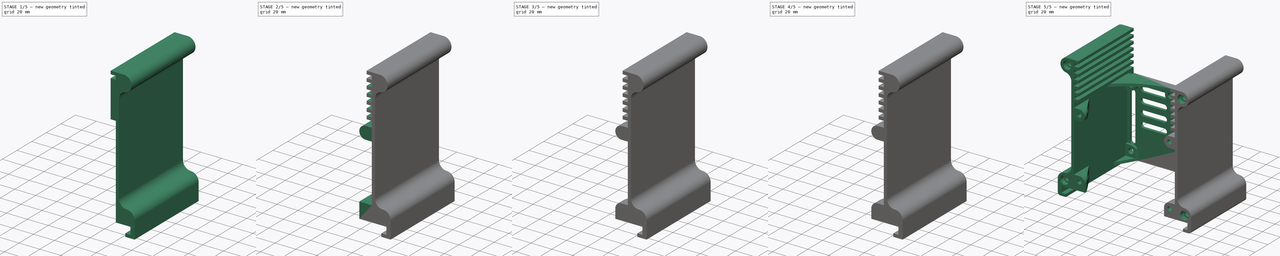
[diagram: build sequence overview — one tinted view per stage of 5, left to right]
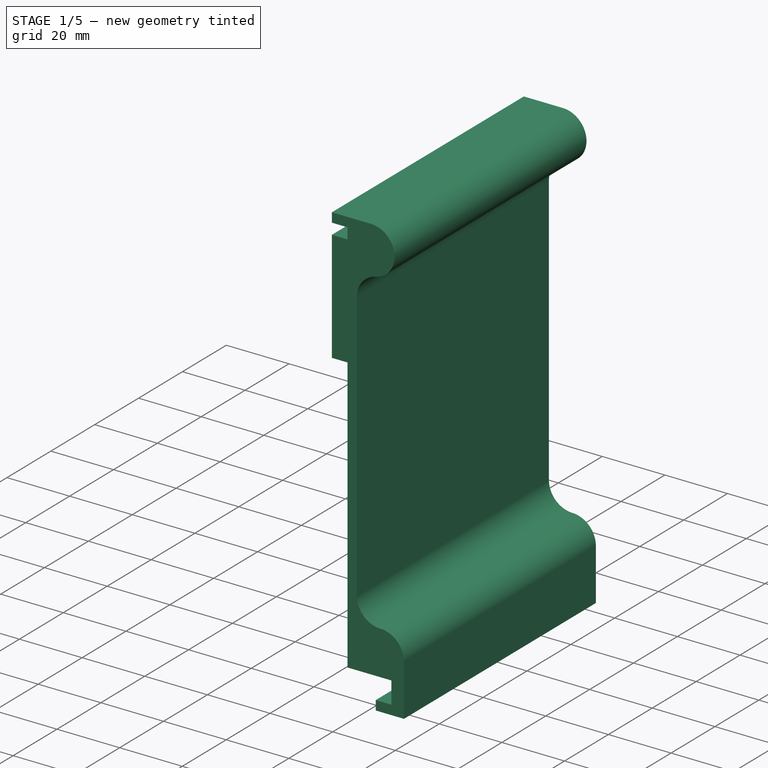
[diagram: stage 1 of 5 — iso view after this stage's code; geometry added in this stage tinted green]
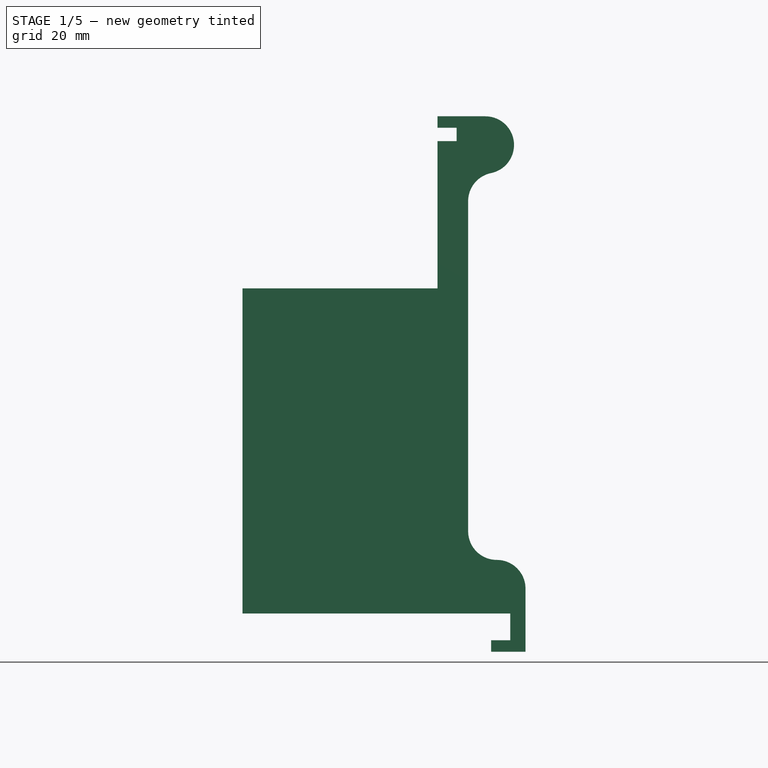
[diagram: stage 1 of 5 — front view after this stage's code; geometry added in this stage tinted green]
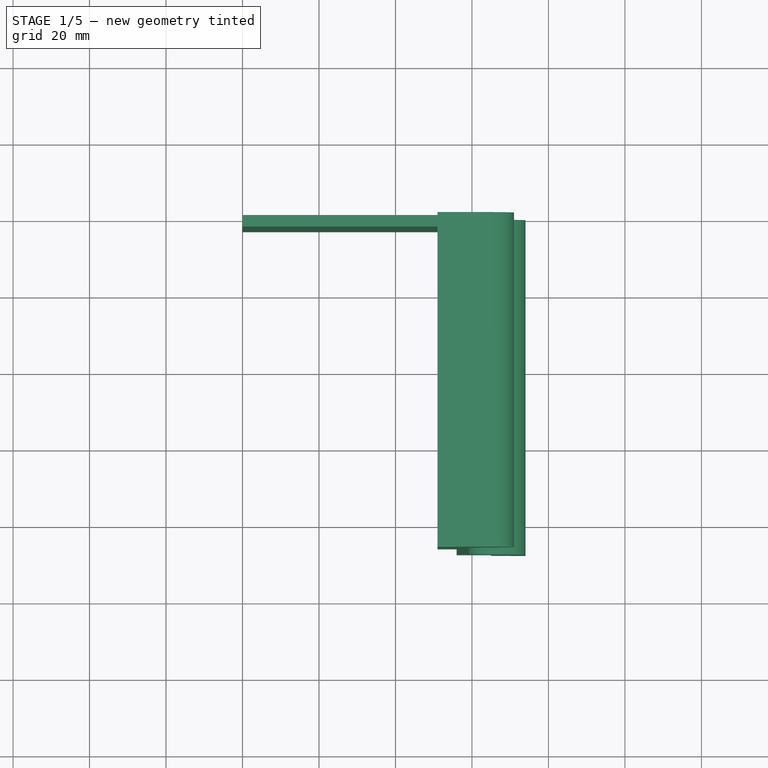
[diagram: stage 1 of 5 — top view after this stage's code; geometry added in this stage tinted green]
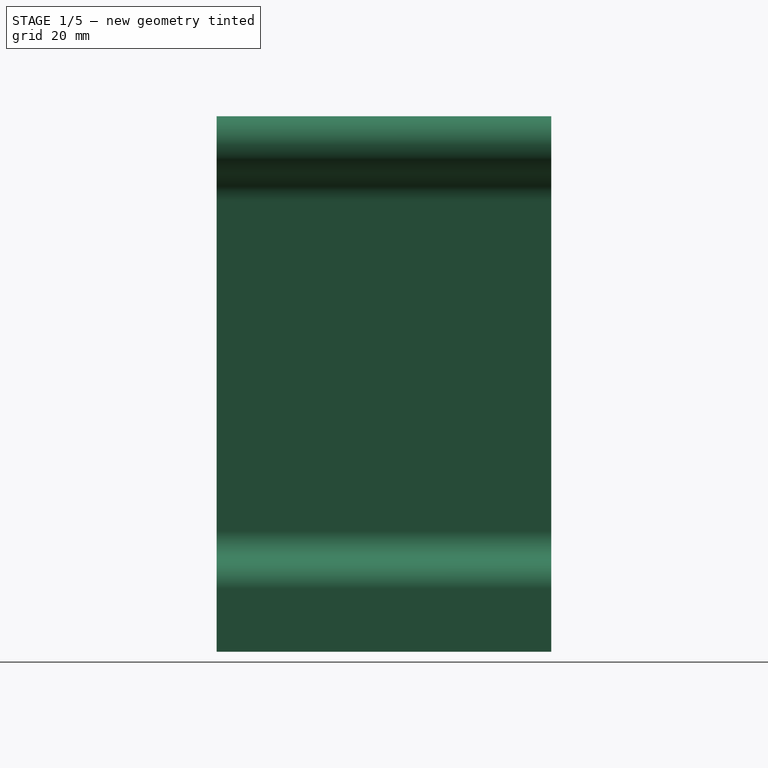
[diagram: stage 1 of 5 — right view after this stage's code; geometry added in this stage tinted green]
FCSTD DOCUMENT  (FreeCAD 1.0R39319 (Git))
Label: Stack_Module
License: All rights reserved
LicenseURL: https://en.wikipedia.org/wiki/All_rights_reserved
objects: Sketcher::SketchObject×20, PartDesign::Pocket×15, PartDesign::CoordinateSystem×7, PartDesign::Pad×6, PartDesign::Fillet×5, PartDesign::LinearPattern×2, PartDesign::Mirrored×1, PartDesign::Body×1, App::Part×1
note: 132 computed .brp shape members not serialized (recipe doc carries the construction recipe); baked Part::Feature solids carry a one-line shape summary decoded from their .brp

FEATURE [Sketcher::SketchObject] Sketch
  ArcFitTolerance = 1e-06
  AttachmentSupport = -> [XZ_Plane001]
  FullyConstrained = true
  MakeInternals = false
  MapMode = 5
  Placement = pos=(0,0,0) rot=(1,0,0;1.5708rad)
  sketch-geometry (9):
    g0: LineSegment StartX=0 StartY=-70 StartZ=0 EndX=74 EndY=-70 EndZ=0
    g1: LineSegment StartX=74 StartY=-70 StartZ=0 EndX=74 EndY=-53.5 EndZ=0
    g2: ArcOfCircle CenterX=66.5 CenterY=-53.5 CenterZ=0 NormalX=0 NormalY=0 NormalZ=1 AngleXU=0 Radius=7.5 StartAngle=0 EndAngle=1.5708
    g3: ArcOfCircle CenterX=66.5 CenterY=-38.5 CenterZ=0 NormalX=0 NormalY=0 NormalZ=1 AngleXU=0 Radius=7.5 StartAngle=3.14159 EndAngle=4.71239
    g4: LineSegment StartX=59 StartY=-38.5 StartZ=0 EndX=59 EndY=47.8031 EndZ=0
    g5: ArcOfCircle CenterX=66.5 CenterY=47.8031 CenterZ=0 NormalX=0 NormalY=0 NormalZ=1 AngleXU=0 Radius=7.5 StartAngle=1.77215 EndAngle=3.14159
    g6: ArcOfCircle CenterX=63.5 CenterY=62.5 CenterZ=0 NormalX=0 NormalY=0 NormalZ=1 AngleXU=0 Radius=7.5 StartAngle=4.91375 EndAngle=7.85398
    g7: LineSegment StartX=63.5 StartY=70 StartZ=0 EndX=0 EndY=70 EndZ=0
    g8: LineSegment StartX=0 StartY=70 StartZ=0 EndX=0 EndY=-70 EndZ=0
  constraints (26):
    c: PointOnObject(g0,g-2)
    c: Horizontal(g0)
    c: Coincident(g0,g1)
    c: Vertical(g1)
    c: Tangent(g1,g2) = -1.5708
    c: Tangent(g2,g3) = 1.5708
    c: Tangent(g3,g4) = 1.5708
    c: Tangent(g4,g5) = 1.5708
    c: Tangent(g5,g6) = 1.5708
    c: Tangent(g6,g7) = -1.5708
    c: Coincident(g7,g8)
    c: Coincident(g8,g0)
    c: Vertical(g8)
    c: Horizontal(g7)
    c: Vertical(g4)
    c: DistanceX(g0,g0) = 74
    c: Distance(g7,g0) = 140
    c: Distance(g2,g0) = 16.5
    c: Radius(g2) = 7.5
    c: Distance(g8,g4) = 59
    c: Radius(g6) = 7.5
    c: Distance(g6,g8) = 63.5
    c: Distance(g2,g8) = 66.5
    c: Distance(g-1,g0) = 70
    c: Radius(g3) = 7.5
    c: Radius(g5) = 7.5
FEATURE [PartDesign::Pad] Pad
  Direction = (0,-1,2e-16)
  Length = 87.5
  Length2 = 10
  Placement = pos=(0,0,0) rot=(1,0,0;1.5708rad)
  Profile = -> Sketch
  ReferenceAxis = -> Sketch [N_Axis]
  Refine = true
  Suppressed = false
  Type = 0
FEATURE [Sketcher::SketchObject] Sketch001
  ArcFitTolerance = 1e-06
  AttachmentSupport = -> [Pad]
  ExternalGeometry = -> [Pad]
  FullyConstrained = true
  MakeInternals = false
  MapMode = 5
  Placement = pos=(0,-87.5,0) rot=(1,0,0;1.5708rad)
  sketch-geometry (6):
    g0: LineSegment StartX=0 StartY=-60 StartZ=0 EndX=0 EndY=-70 EndZ=0
    g1: LineSegment StartX=70 StartY=-67 StartZ=0 EndX=70 EndY=-60 EndZ=0
    g2: LineSegment StartX=70 StartY=-60 StartZ=0 EndX=0 EndY=-60 EndZ=0
    g3: LineSegment StartX=70 StartY=-67 StartZ=0 EndX=65 EndY=-67 EndZ=0
    g4: LineSegment StartX=65 StartY=-67 StartZ=0 EndX=65 EndY=-70 EndZ=0
    g5: LineSegment StartX=65 StartY=-70 StartZ=0 EndX=0 EndY=-70 EndZ=0
  constraints (17):
    c: Coincident(g1,g2)
    c: Coincident(g2,g0)
    c: Vertical(g0)
    c: Vertical(g1)
    c: Horizontal(g2)
    c: Distance(g-2,g1) = 70
    c: Coincident(g1,g3)
    c: Horizontal(g3)
    c: Coincident(g3,g4)
    c: PointOnObject(g4,g-3)
    c: Coincident(g4,g5)
    c: Coincident(g5,g-3)
    c: Coincident(g0,g5)
    c: Vertical(g4)
    c: Distance(g3,g2) = 7
    c: Distance(g5,g3) = 3
    c: Distance(g-2,g4) = 65
FEATURE [PartDesign::Pocket] Pocket
  BaseFeature = -> Pad
  Direction = (0,1,-2e-16)
  Length = 5
  Length2 = 5
  Placement = pos=(0,0,0) rot=(1,0,0;1.5708rad)
  Profile = -> Sketch001
  ReferenceAxis = -> Sketch001 [N_Axis]
  Refine = true
  Suppressed = false
  Type = 1
FEATURE [Sketcher::SketchObject] Sketch002
  ArcFitTolerance = 1e-06
  AttachmentSupport = -> [Pocket]
  ExternalGeometry = -> [Pocket]
  FullyConstrained = true
  MakeInternals = false
  MapMode = 5
  Placement = pos=(0,-87.5,0) rot=(1,0,0;1.5708rad)
  sketch-geometry (4):
    g0: LineSegment StartX=0 StartY=28 StartZ=0 EndX=0 EndY=-60 EndZ=0
    g1: LineSegment StartX=0 StartY=-60 StartZ=0 EndX=56 EndY=-60 EndZ=0
    g2: LineSegment StartX=56 StartY=-60 StartZ=0 EndX=56 EndY=28 EndZ=0
    g3: LineSegment StartX=56 StartY=28 StartZ=0 EndX=0 EndY=28 EndZ=0
  constraints (12):
    c: Coincident(g0,g1)
    c: Coincident(g1,g2)
    c: Coincident(g2,g3)
    c: Coincident(g3,g0)
    c: Vertical(g0)
    c: Vertical(g2)
    c: Horizontal(g1)
    c: Horizontal(g3)
    c: PointOnObject(g0,g-2)
    c: PointOnObject(g1,g-3)
    c: Distance(g-4,g2) = 3
    c: Distance(g3,g1) = 88
FEATURE [PartDesign::Pocket] Pocket001
  BaseFeature = -> Pocket
  Direction = (0,1,-2e-16)
  Length = 0
  Length2 = 5
  Offset = -3
  Placement = pos=(0,0,0) rot=(1,0,0;1.5708rad)
  Profile = -> Sketch002
  ReferenceAxis = -> Sketch002 [N_Axis]
  Refine = true
  Suppressed = false
  Type = 3
  UpToFace = -> Pocket [Face2]
FEATURE [Sketcher::SketchObject] Sketch003
  ArcFitTolerance = 1e-06
  AttachmentSupport = -> [Pocket001]
  ExternalGeometry = -> [Pocket001]
  FullyConstrained = true
  MakeInternals = false
  MapMode = 5
  Placement = pos=(0,-87.5,0) rot=(1,0,0;1.5708rad)
  sketch-geometry (4):
    g0: LineSegment StartX=0 StartY=70 StartZ=0 EndX=0 EndY=25 EndZ=0
    g1: LineSegment StartX=0 StartY=25 StartZ=0 EndX=51 EndY=25 EndZ=0
    g2: LineSegment StartX=51 StartY=25 StartZ=0 EndX=51 EndY=70 EndZ=0
    g3: LineSegment StartX=51 StartY=70 StartZ=0 EndX=0 EndY=70 EndZ=0
  constraints (11):
    c: Coincident(g0,g1)
    c: Coincident(g1,g2)
    c: Coincident(g2,g3)
    c: Coincident(g3,g0)
    c: Vertical(g0)
    c: Vertical(g2)
    c: Horizontal(g1)
    c: Horizontal(g3)
    c: Coincident(g0,g-4)
    c: Distance(g2,g-3) = 5
    c: Distance(g1,g3) = 45
FEATURE [PartDesign::Pocket] Pocket002
  BaseFeature = -> Pocket001
  Direction = (0,1,-2e-16)
  Length = 5
  Length2 = 5
  Placement = pos=(0,0,0) rot=(1,0,0;1.5708rad)
  Profile = -> Sketch003
  ReferenceAxis = -> Sketch003 [N_Axis]
  Refine = true
  Suppressed = false
  Type = 1
FEATURE [PartDesign::Pocket] Pocket003
  BaseFeature = -> Pocket002
  Direction = (0,1,-2e-16)
  Length = 5
  Length2 = 5
  Placement = pos=(0,0,0) rot=(1,0,0;1.5708rad)
  Profile = -> Sketch003
  ReferenceAxis = -> Sketch003 [N_Axis]
  Refine = true
  Suppressed = false
  Type = 1
FEATURE [Sketcher::SketchObject] Sketch004
  ArcFitTolerance = 1e-06
  AttachmentSupport = -> [Pocket003]
  ExternalGeometry = -> [Pocket003]
  FullyConstrained = true
  MakeInternals = false
  MapMode = 5
  Placement = pos=(0,-87.5,0) rot=(1,0,0;1.5708rad)
  sketch-geometry (4):
    g0: LineSegment StartX=51 StartY=67 StartZ=0 EndX=51 EndY=63.5 EndZ=0
    g1: LineSegment StartX=51 StartY=63.5 StartZ=0 EndX=56 EndY=63.5 EndZ=0
    g2: LineSegment StartX=56 StartY=63.5 StartZ=0 EndX=56 EndY=67 EndZ=0
    g3: LineSegment StartX=56 StartY=67 StartZ=0 EndX=51 EndY=67 EndZ=0
  constraints (12):
    c: Coincident(g0,g1)
    c: Coincident(g1,g2)
    c: Coincident(g2,g3)
    c: Coincident(g3,g0)
    c: Vertical(g0)
    c: Vertical(g2)
    c: Horizontal(g1)
    c: Horizontal(g3)
    c: PointOnObject(g0,g-4)
    c: Distance(g-3,g3) = 3
    c: Distance(g3,g1) = 3.5
    c: PointOnObject(g1,g-5)
FEATURE [PartDesign::Pocket] Pocket004
  BaseFeature = -> Pocket003
  Direction = (0,1,-2e-16)
  Length = 5
  Length2 = 5
  Placement = pos=(0,0,0) rot=(1,0,0;1.5708rad)
  Profile = -> Sketch004
  ReferenceAxis = -> Sketch004 [N_Axis]
  Refine = true
  Suppressed = false
  Type = 1
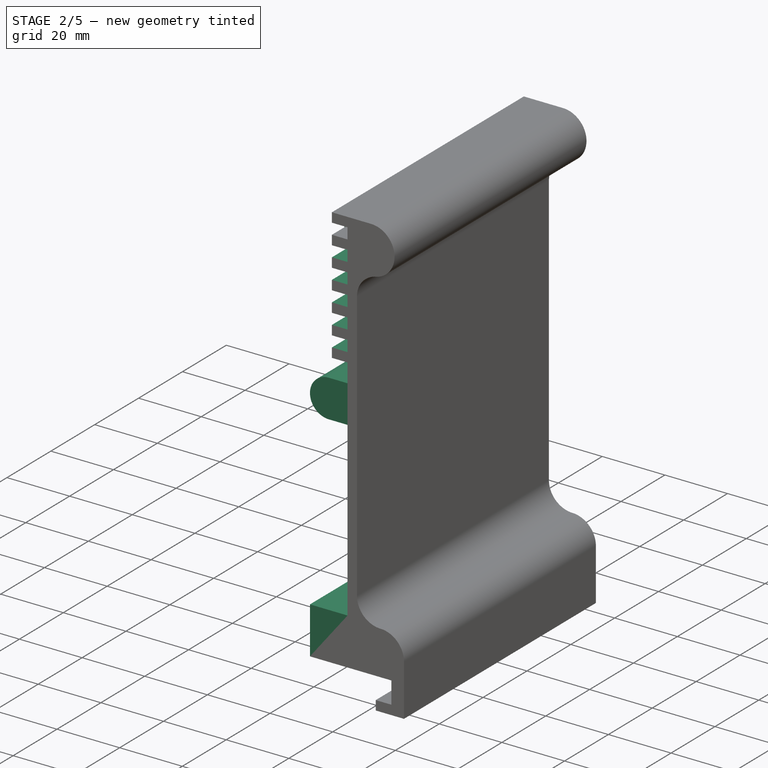
[diagram: stage 2 of 5 — iso view after this stage's code; geometry added in this stage tinted green]
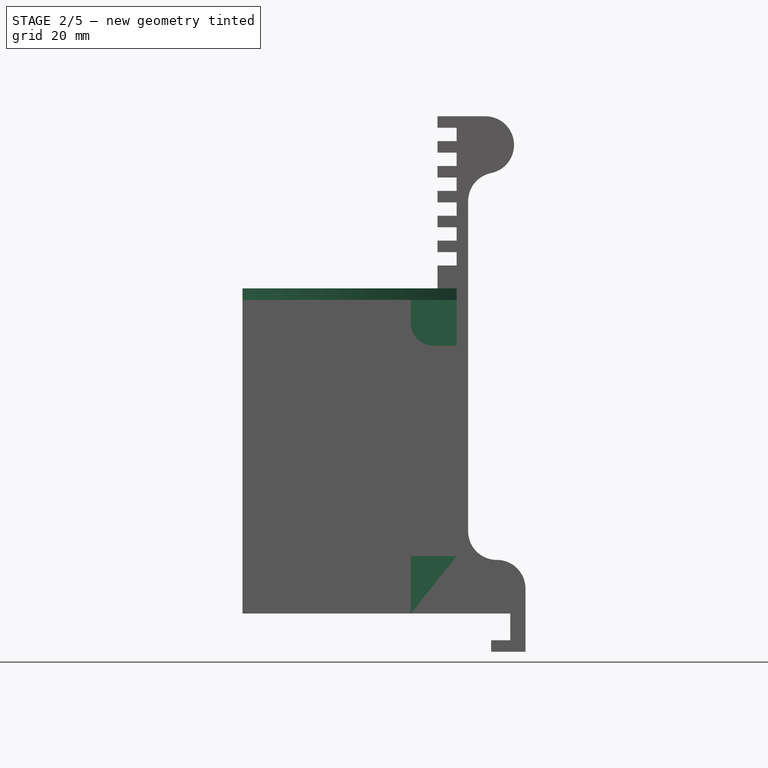
[diagram: stage 2 of 5 — front view after this stage's code; geometry added in this stage tinted green]
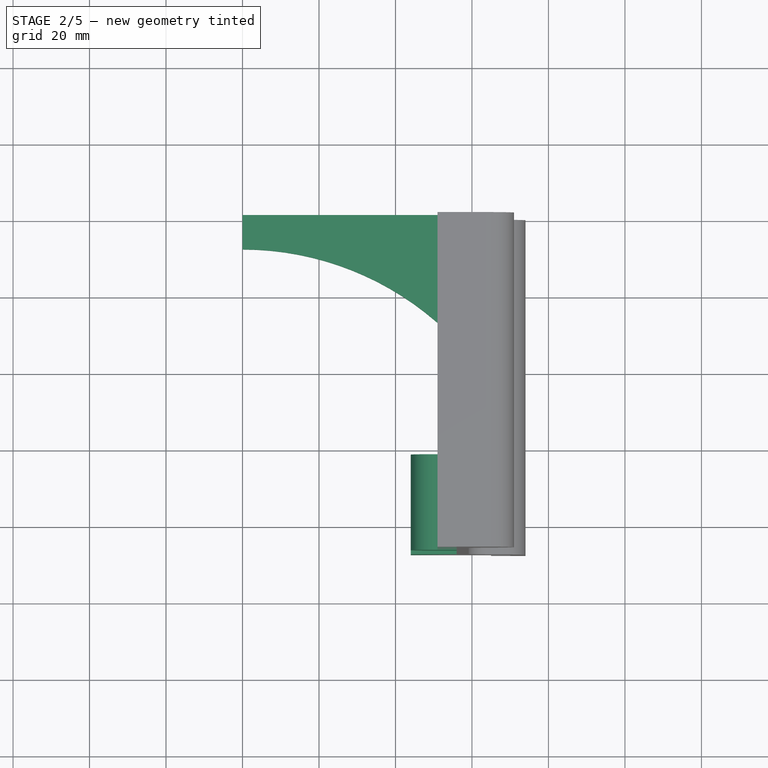
[diagram: stage 2 of 5 — top view after this stage's code; geometry added in this stage tinted green]
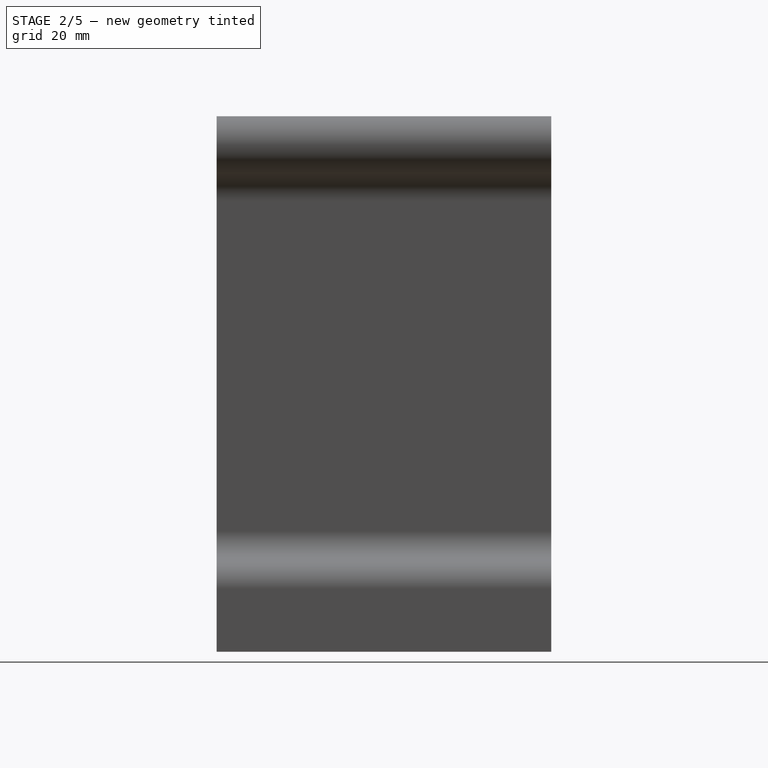
[diagram: stage 2 of 5 — right view after this stage's code; geometry added in this stage tinted green]
FEATURE [PartDesign::LinearPattern] LinearPattern
  BaseFeature = -> Pocket004
  Direction = -> Z_Axis001
  Length = 32.5
  Mode = 1
  Occurrences = 6
  Offset = 6.5
  Originals = -> [Pocket004]
  Placement = pos=(0,0,0) rot=(1,0,0;1.5708rad)
  Refine = true
  Reversed = true
  Suppressed = false
  TransformMode = 0
FEATURE [Sketcher::SketchObject] Sketch005
  ArcFitTolerance = 1e-06
  AttachmentSupport = -> [LinearPattern]
  ExternalGeometry = -> [LinearPattern]
  FullyConstrained = true
  MakeInternals = false
  MapMode = 5
  Placement = pos=(0,1.1e-14,25) rot=(0,0,1;3.14159rad)
  sketch-geometry (4):
    g0: LineSegment StartX=0 StartY=3 StartZ=0 EndX=-56 EndY=3 EndZ=0
    g1: LineSegment StartX=-56 StartY=3 StartZ=0 EndX=-56 EndY=33 EndZ=0
    g2: LineSegment StartX=0 StartY=3 StartZ=0 EndX=-1.42e-14 EndY=9 EndZ=0
    g3: ArcOfCircle CenterX=0 CenterY=86.3333 CenterZ=0 NormalX=0 NormalY=0 NormalZ=1 AngleXU=0 Radius=77.3333 StartAngle=3.90261 EndAngle=4.71239
  constraints (13):
    c: PointOnObject(g0,g-2)
    c: Horizontal(g0)
    c: Coincident(g0,g1)
    c: Vertical(g1)
    c: Coincident(g2,g0)
    c: PointOnObject(g2,g-2)
    c: Coincident(g3,g2)
    c: Coincident(g3,g1)
    c: PointOnObject(g3,g-2)
    c: DistanceY(g2,g2) = 6
    c: DistanceY(g1,g1) = 30
    c: PointOnObject(g0,g-3)
    c: PointOnObject(g1,g-4)
FEATURE [PartDesign::Pad] Pad001
  BaseFeature = -> LinearPattern
  Direction = (0,0,1)
  Length = 3
  Length2 = 10
  Placement = pos=(0,0,0) rot=(1,0,0;1.5708rad)
  Profile = -> Sketch005
  ReferenceAxis = -> Sketch005 [N_Axis]
  Refine = true
  Reversed = true
  Suppressed = false
  Type = 0
FEATURE [Sketcher::SketchObject] Sketch006
  ArcFitTolerance = 1e-06
  AttachmentSupport = -> [Pad001]
  ExternalGeometry = -> [Pad001]
  FullyConstrained = true
  MakeInternals = false
  MapMode = 5
  Placement = pos=(0,-3,7e-16) rot=(1,0,0;1.5708rad)
  sketch-geometry (8):
    g0: LineSegment StartX=56 StartY=22 StartZ=0 EndX=44 EndY=22 EndZ=0
    g1: LineSegment StartX=44 StartY=22 StartZ=0 EndX=44 EndY=10 EndZ=0
    g2: LineSegment StartX=44 StartY=10 StartZ=0 EndX=56 EndY=10 EndZ=0
    g3: LineSegment StartX=56 StartY=10 StartZ=0 EndX=56 EndY=22 EndZ=0
    g4: LineSegment StartX=56 StartY=-45 StartZ=0 EndX=44 EndY=-45 EndZ=0
    g5: LineSegment StartX=44 StartY=-45 StartZ=0 EndX=44 EndY=-57 EndZ=0
    g6: LineSegment StartX=44 StartY=-57 StartZ=0 EndX=56 EndY=-57 EndZ=0
    g7: LineSegment StartX=56 StartY=-57 StartZ=0 EndX=56 EndY=-45 EndZ=0
  constraints (23):
    c: Coincident(g0,g1)
    c: Coincident(g1,g2)
    c: Coincident(g2,g3)
    c: Coincident(g3,g0)
    c: Horizontal(g0)
    c: Horizontal(g2)
    c: Vertical(g1)
    c: Vertical(g3)
    c: Coincident(g4,g5)
    c: Coincident(g5,g6)
    c: Coincident(g6,g7)
    c: Coincident(g7,g4)
    c: Horizontal(g4)
    c: Horizontal(g6)
    c: Vertical(g5)
    c: Vertical(g7)
    c: DistanceX(g0,g0) = 12
    c: Distance(g2,g0) = 12
    c: Distance(g6,g4) = 12
    c: Distance(g7,g5) = 12
    c: Coincident(g0,g-5)
    c: PointOnObject(g4,g-3)
    c: Distance(g-4,g6) = 3
FEATURE [PartDesign::Pad] Pad002
  BaseFeature = -> Pad001
  Direction = (0,-1,2e-16)
  Length = 3
  Length2 = 10
  Placement = pos=(0,0,0) rot=(1,0,0;1.5708rad)
  Profile = -> Sketch006
  ReferenceAxis = -> Sketch006 [N_Axis]
  Refine = true
  Suppressed = false
  Type = 0
FEATURE [PartDesign::Fillet] Fillet
  Base = -> Pad002 [Edge152,Edge151]
  BaseFeature = -> Pad002
  Placement = pos=(0,0,0) rot=(1,0,0;1.5708rad)
  Radius = 6
  Refine = true
  SupportTransform = false
  Suppressed = false
  UseAllEdges = false
FEATURE [Sketcher::SketchObject] Sketch007
  ArcFitTolerance = 1e-06
  AttachmentSupport = -> [Fillet]
  ExternalGeometry = -> [Fillet]
  FullyConstrained = true
  MakeInternals = false
  MapMode = 5
  Placement = pos=(0,-87.5,0) rot=(1,0,0;1.5708rad)
  sketch-geometry (8):
    g0: LineSegment StartX=56 StartY=22 StartZ=0 EndX=56 EndY=10 EndZ=0
    g1: LineSegment StartX=56 StartY=10 StartZ=0 EndX=50 EndY=10 EndZ=0
    g2: ArcOfCircle CenterX=50 CenterY=16 CenterZ=0 NormalX=0 NormalY=0 NormalZ=1 AngleXU=0 Radius=6 StartAngle=1.5708 EndAngle=4.71239
    g3: LineSegment StartX=50 StartY=22 StartZ=0 EndX=56 EndY=22 EndZ=0
    g4: LineSegment StartX=56 StartY=-57 StartZ=0 EndX=56 EndY=-45 EndZ=0
    g5: LineSegment StartX=56 StartY=-45 StartZ=0 EndX=44 EndY=-45 EndZ=0
    g6: LineSegment StartX=44 StartY=-45 StartZ=0 EndX=44 EndY=-57 EndZ=0
    g7: LineSegment StartX=44 StartY=-57 StartZ=0 EndX=56 EndY=-57 EndZ=0
  constraints (17):
    c: Coincident(g0,g1)
    c: Horizontal(g1)
    c: Tangent(g1,g2) = 1.5708
    c: Tangent(g2,g3) = 1.5708
    c: Coincident(g3,g0)
    c: Coincident(g0,g-3)
    c: Coincident(g0,g-5)
    c: Coincident(g-6,g2)
    c: Coincident(g4,g5)
    c: Coincident(g5,g6)
    c: Coincident(g6,g7)
    c: Coincident(g7,g4)
    c: Vertical(g6)
    c: Horizontal(g5)
    c: Coincident(g-9,g4)
    c: Coincident(g6,g-8)
    c: Coincident(g4,g-7)
FEATURE [PartDesign::Pad] Pad003
  BaseFeature = -> Fillet
  Direction = (0,-1,2e-16)
  Length = 25
  Length2 = 10
  Placement = pos=(0,0,0) rot=(1,0,0;1.5708rad)
  Profile = -> Sketch007
  ReferenceAxis = -> Sketch007 [N_Axis]
  Refine = true
  Reversed = true
  Suppressed = false
  Type = 0
FEATURE [Sketcher::SketchObject] Sketch008
  ArcFitTolerance = 1e-06
  AttachmentSupport = -> [Pad003]
  ExternalGeometry = -> [Pad003]
  FullyConstrained = true
  MakeInternals = false
  MapMode = 5
  Placement = pos=(0,-2.64e-14,-60) rot=(1,0,0;3.14159rad)
  sketch-geometry (7):
    g0: LineSegment StartX=56 StartY=87.5 StartZ=0 EndX=44 EndY=87.5 EndZ=0
    g1: LineSegment StartX=44 StartY=87.5 StartZ=0 EndX=44 EndY=84.5 EndZ=0
    g2: LineSegment StartX=44 StartY=84.5 StartZ=0 EndX=56 EndY=63.7154 EndZ=0
    g3: LineSegment StartX=56 StartY=63.7154 StartZ=0 EndX=56 EndY=87.5 EndZ=0
    g4: LineSegment StartX=56 StartY=23.7846 StartZ=0 EndX=44 EndY=3 EndZ=0
    g5: LineSegment StartX=44 StartY=3 StartZ=0 EndX=56 EndY=3 EndZ=0
    g6: LineSegment StartX=56 StartY=3 StartZ=0 EndX=56 EndY=23.7846 EndZ=0
  constraints (18):
    c: Coincident(g-5,g0)
    c: Coincident(g0,g-5)
    c: Coincident(g0,g1)
    c: PointOnObject(g1,g-4)
    c: Coincident(g1,g2)
    c: PointOnObject(g2,g-3)
    c: Coincident(g2,g3)
    c: Coincident(g3,g0)
    c: PointOnObject(g4,g-3)
    c: PointOnObject(g4,g-6)
    c: Coincident(g4,g5)
    c: Coincident(g5,g-6)
    c: Coincident(g5,g6)
    c: Coincident(g6,g4)
    c: Angle(g4,g6) = 0.523599
    c: Angle(g3,g2) = 0.523599
    c: DistanceY(g1,g1) = 3
    c: PointOnObject(g4,g-4)
FEATURE [PartDesign::Pad] Pad004
  BaseFeature = -> Pad003
  Direction = (0,0,-1)
  Length = 10
  Length2 = 10
  Placement = pos=(0,0,0) rot=(1,0,0;1.5708rad)
  Profile = -> Sketch008
  ReferenceAxis = -> Sketch008 [N_Axis]
  Refine = true
  Suppressed = false
  Type = 3
  UpToFace = -> Pad003 [Face14]
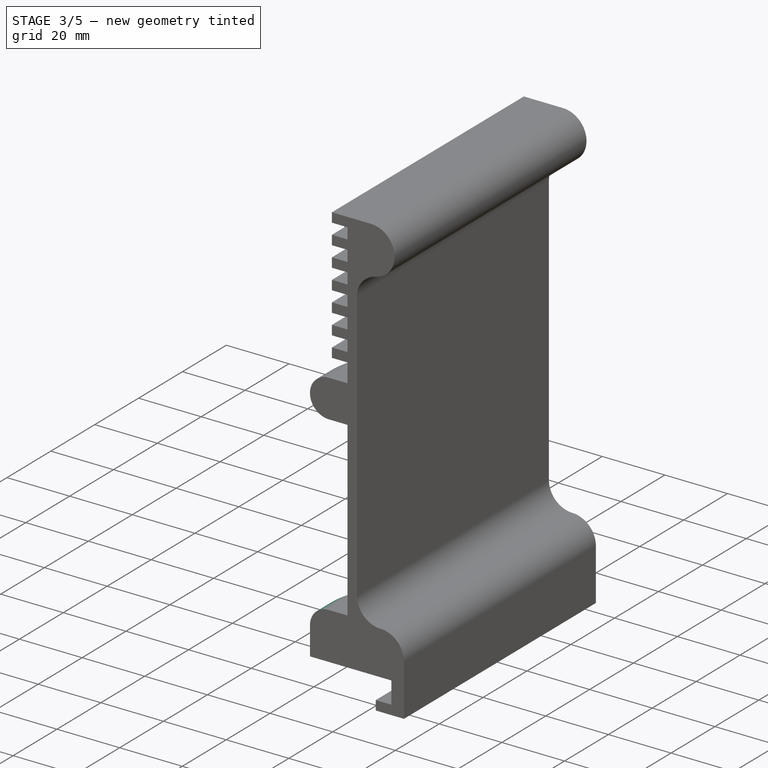
[diagram: stage 3 of 5 — iso view after this stage's code; geometry added in this stage tinted green]
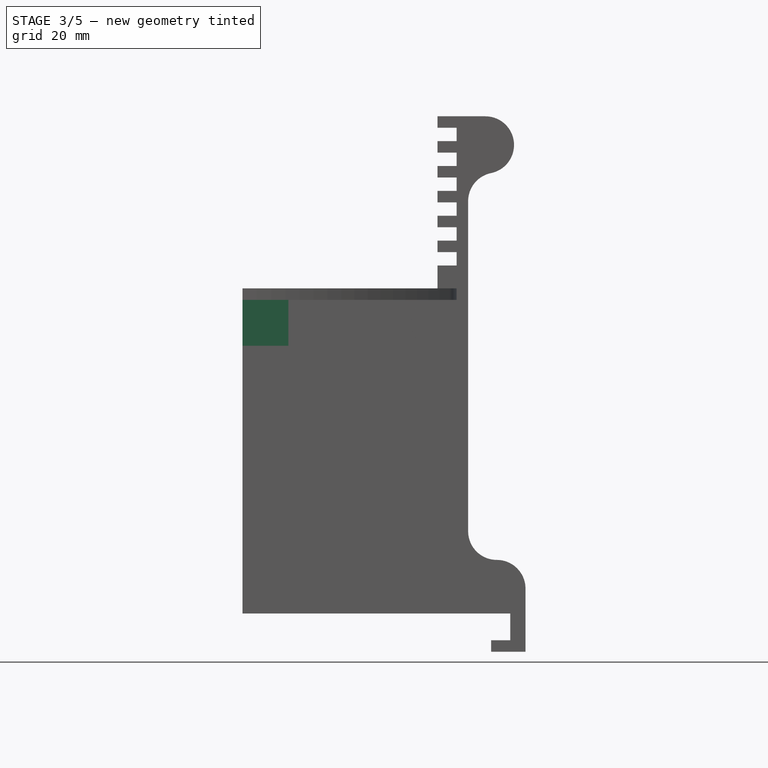
[diagram: stage 3 of 5 — front view after this stage's code; geometry added in this stage tinted green]
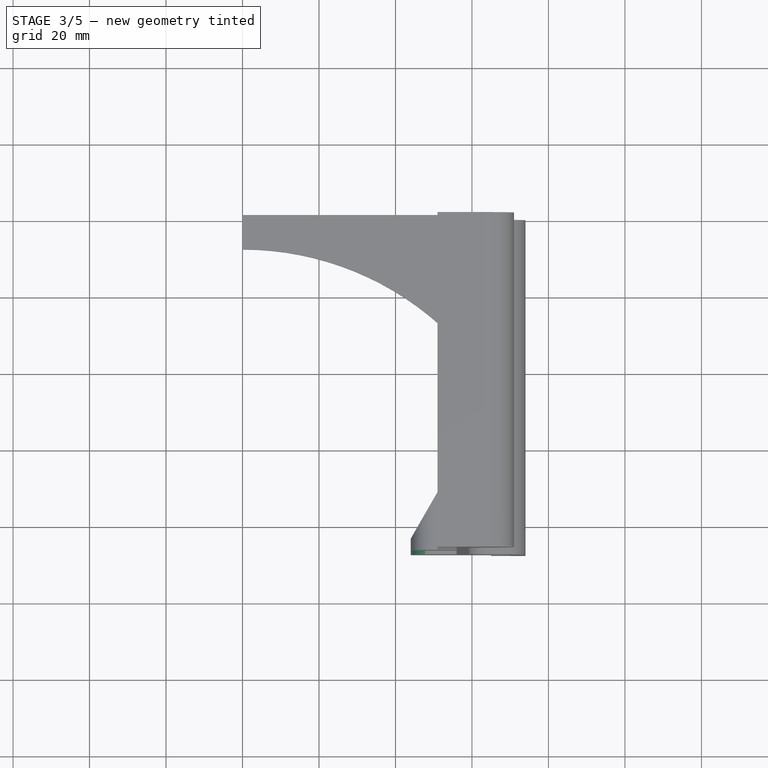
[diagram: stage 3 of 5 — top view after this stage's code; geometry added in this stage tinted green]
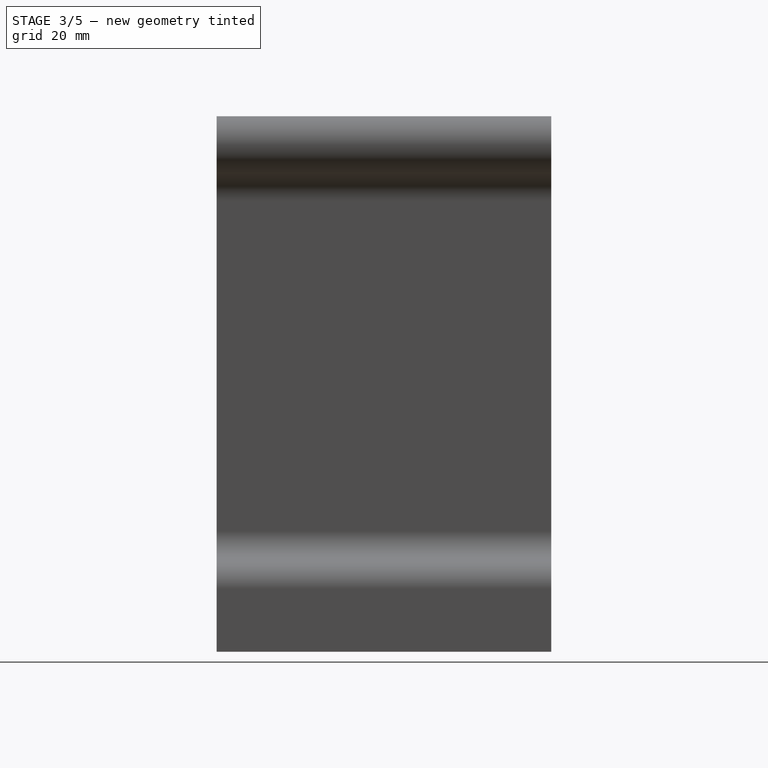
[diagram: stage 3 of 5 — right view after this stage's code; geometry added in this stage tinted green]
FEATURE [Sketcher::SketchObject] Sketch009
  ArcFitTolerance = 1e-06
  AttachmentSupport = -> [Pad004]
  ExternalGeometry = -> [Pad004]
  FullyConstrained = true
  MakeInternals = false
  MapMode = 5
  Placement = pos=(0,-2.51e-14,-57) rot=(1,0,0;3.14159rad)
  sketch-geometry (3):
    g0: LineSegment StartX=44 StartY=3 StartZ=0 EndX=44 EndY=6 EndZ=0
    g1: LineSegment StartX=44 StartY=6 StartZ=0 EndX=45.7321 EndY=6 EndZ=0
    g2: LineSegment StartX=45.7321 StartY=6 StartZ=0 EndX=44 EndY=3 EndZ=0
  constraints (6):
    c: Coincident(g-5,g0)
    c: Coincident(g0,g-4)
    c: Coincident(g0,g1)
    c: Coincident(g1,g-3)
    c: Coincident(g1,g2)
    c: Coincident(g2,g0)
FEATURE [PartDesign::Pocket] Pocket005
  BaseFeature = -> Pad004
  Direction = (0,0,1)
  Length = 0
  Length2 = 5
  Placement = pos=(0,0,0) rot=(1,0,0;1.5708rad)
  Profile = -> Sketch009
  ReferenceAxis = -> Sketch009 [N_Axis]
  Refine = true
  Suppressed = false
  Type = 3
  UpToFace = -> Pad004 [Face3]
FEATURE [Sketcher::SketchObject] Sketch010
  ArcFitTolerance = 1e-06
  AttachmentSupport = -> [Pocket005]
  ExternalGeometry = -> [Pocket005]
  FullyConstrained = true
  MakeInternals = false
  MapMode = 5
  Placement = pos=(0,-2.51e-14,-57) rot=(1,0,0;3.14159rad)
  sketch-geometry (4):
    g0: LineSegment StartX=44 StartY=84.5 StartZ=0 EndX=44 EndY=62.5 EndZ=0
    g1: LineSegment StartX=44 StartY=62.5 StartZ=0 EndX=56 EndY=62.5 EndZ=0
    g2: LineSegment StartX=56 StartY=62.5 StartZ=0 EndX=56 EndY=63.7154 EndZ=0
    g3: LineSegment StartX=56 StartY=63.7154 StartZ=0 EndX=44 EndY=84.5 EndZ=0
  constraints (8):
    c: Coincident(g-6,g0)
    c: Coincident(g0,g-4)
    c: Coincident(g0,g1)
    c: Coincident(g1,g-4)
    c: Coincident(g1,g2)
    c: Coincident(g2,g-6)
    c: Coincident(g2,g3)
    c: Coincident(g3,g0)
FEATURE [PartDesign::Pocket] Pocket006
  BaseFeature = -> Pocket005
  Direction = (0,0,1)
  Length = 0
  Length2 = 5
  Placement = pos=(0,0,0) rot=(1,0,0;1.5708rad)
  Profile = -> Sketch010
  ReferenceAxis = -> Sketch010 [N_Axis]
  Refine = true
  Suppressed = false
  Type = 3
  UpToFace = -> Pocket005 [Face19]
FEATURE [PartDesign::Fillet] Fillet001
  Base = -> Pocket006 [Edge105]
  BaseFeature = -> Pocket006
  Placement = pos=(0,0,0) rot=(1,0,0;1.5708rad)
  Radius = 6
  Refine = true
  SupportTransform = false
  Suppressed = false
  UseAllEdges = false
FEATURE [PartDesign::Fillet] Fillet002
  Base = -> Fillet001 [Edge54,Edge52,Edge67,Edge59]
  BaseFeature = -> Fillet001
  Placement = pos=(0,0,0) rot=(1,0,0;1.5708rad)
  Radius = 6
  Refine = true
  SupportTransform = false
  Suppressed = false
  UseAllEdges = false
FEATURE [Sketcher::SketchObject] Sketch011
  ArcFitTolerance = 1e-06
  AttachmentSupport = -> [Fillet002]
  ExternalGeometry = -> [Fillet002]
  FullyConstrained = true
  MakeInternals = false
  MapMode = 5
  Placement = pos=(0,-3,7e-16) rot=(1,0,0;1.5708rad)
  sketch-geometry (4):
    g0: LineSegment StartX=1.42e-14 StartY=22 StartZ=0 EndX=1.42e-14 EndY=10 EndZ=0
    g1: LineSegment StartX=1.42e-14 StartY=10 StartZ=0 EndX=12 EndY=10 EndZ=0
    g2: LineSegment StartX=12 StartY=10 StartZ=0 EndX=12 EndY=22 EndZ=0
    g3: LineSegment StartX=12 StartY=22 StartZ=0 EndX=1.42e-14 EndY=22 EndZ=0
  constraints (11):
    c: Coincident(g0,g1)
    c: Coincident(g1,g2)
    c: Coincident(g2,g3)
    c: Coincident(g3,g0)
    c: Vertical(g0)
    c: Vertical(g2)
    c: Horizontal(g1)
    c: Horizontal(g3)
    c: Coincident(g0,g-3)
    c: Distance(g0,g2) = 12
    c: PointOnObject(g1,g-4)
FEATURE [PartDesign::Pad] Pad005
  BaseFeature = -> Fillet002
  Direction = (0,-1,2e-16)
  Length = 3
  Length2 = 10
  Placement = pos=(0,0,0) rot=(1,0,0;1.5708rad)
  Profile = -> Sketch011
  ReferenceAxis = -> Sketch011 [N_Axis]
  Refine = true
  Suppressed = false
  Type = 0
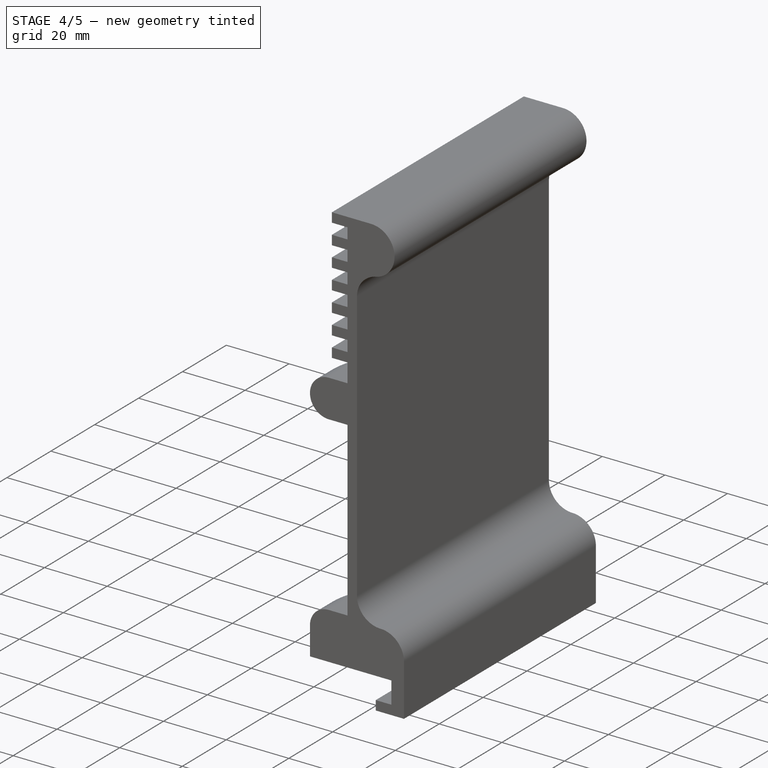
[diagram: stage 4 of 5 — iso view after this stage's code; geometry added in this stage tinted green]
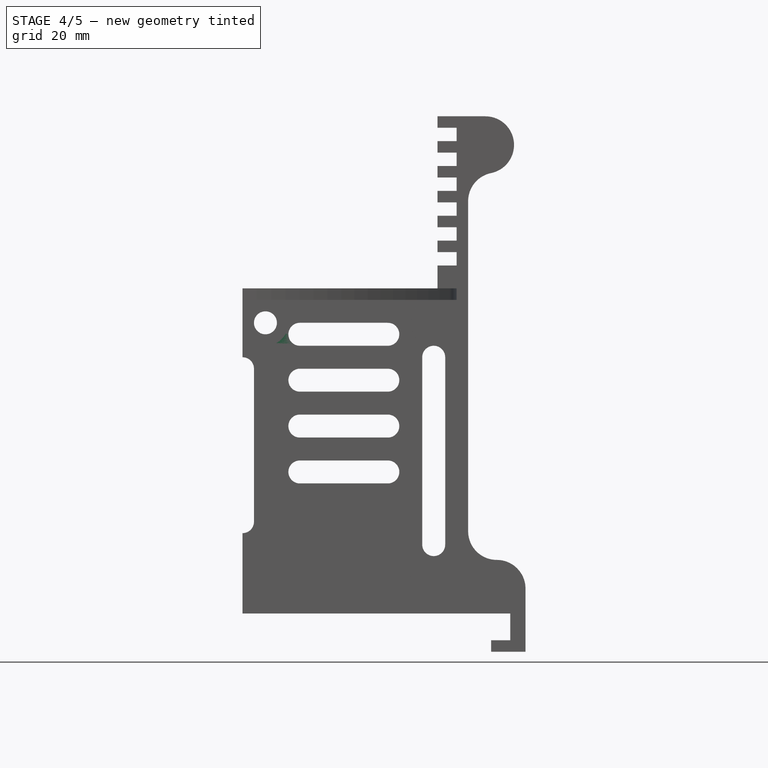
[diagram: stage 4 of 5 — front view after this stage's code; geometry added in this stage tinted green]
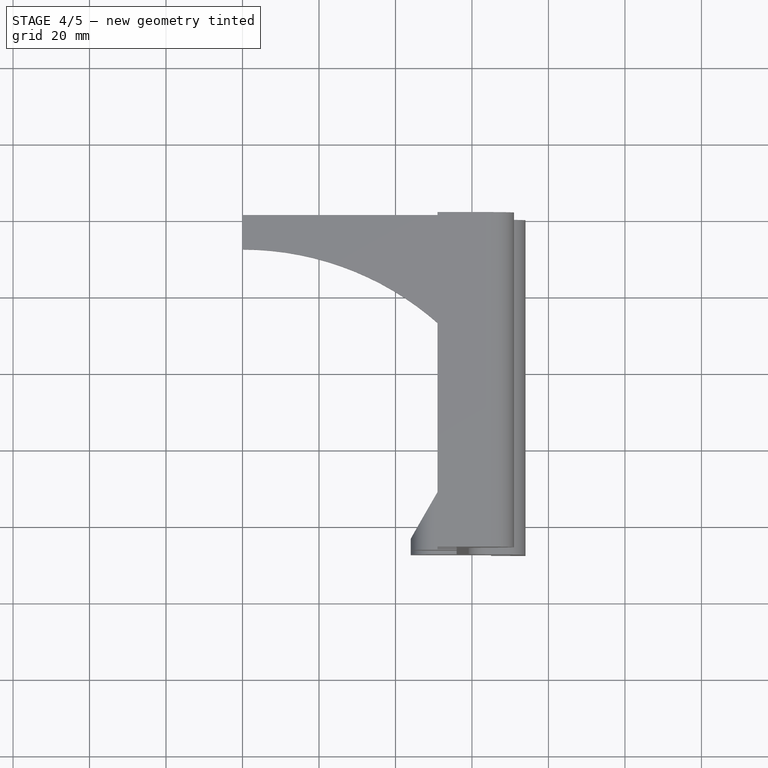
[diagram: stage 4 of 5 — top view after this stage's code; geometry added in this stage tinted green]
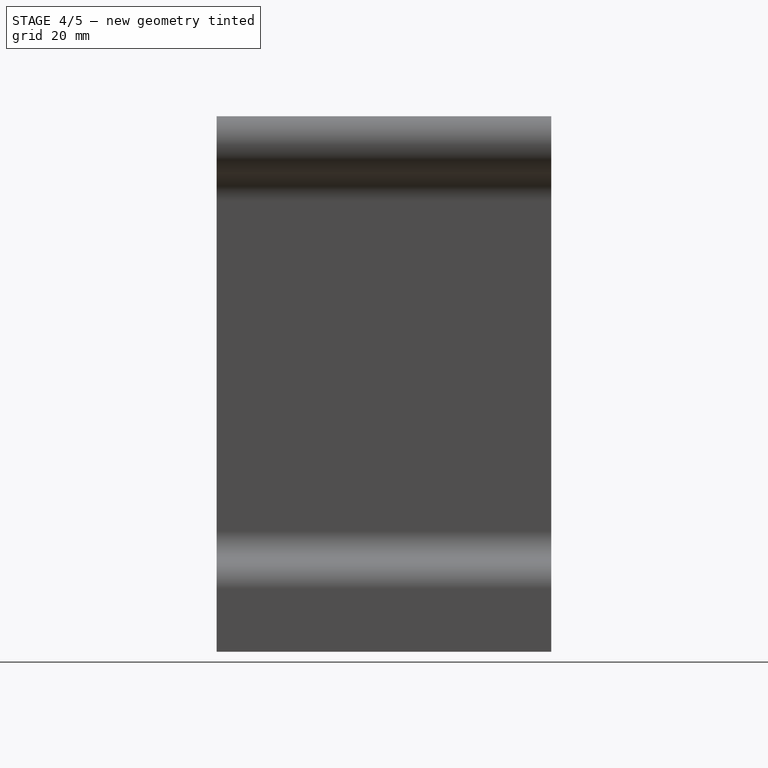
[diagram: stage 4 of 5 — right view after this stage's code; geometry added in this stage tinted green]
FEATURE [PartDesign::Fillet] Fillet003
  Base = -> Pad005 [Edge204]
  BaseFeature = -> Pad005
  Placement = pos=(0,0,0) rot=(1,0,0;1.5708rad)
  Radius = 6
  Refine = true
  SupportTransform = false
  Suppressed = false
  UseAllEdges = false
FEATURE [Sketcher::SketchObject] Sketch012
  ArcFitTolerance = 1e-06
  AttachmentSupport = -> [Fillet003]
  ExternalGeometry = -> [Fillet003]
  FullyConstrained = true
  MakeInternals = false
  MapMode = 5
  Placement = pos=(0,-3,7e-16) rot=(1,0,0;1.5708rad)
  sketch-geometry (5):
    g0: ArcOfCircle CenterX=50 CenterY=7 CenterZ=0 NormalX=0 NormalY=0 NormalZ=1 AngleXU=0 Radius=3 StartAngle=2e-16 EndAngle=3.14159
    g1: ArcOfCircle CenterX=50 CenterY=-42 CenterZ=0 NormalX=0 NormalY=0 NormalZ=1 AngleXU=0 Radius=3 StartAngle=3.14159 EndAngle=6.28319
    g2: LineSegment StartX=53 StartY=7 StartZ=0 EndX=53 EndY=-42 EndZ=0
    g3: LineSegment StartX=47 StartY=7 StartZ=0 EndX=47 EndY=-42 EndZ=0
    g4: LineSegment [constr] StartX=50 StartY=7 StartZ=0 EndX=50 EndY=-42 EndZ=0
  constraints (12):
    c: Tangent(g0,g2) = 1.5708
    c: Tangent(g0,g3) = -1.5708
    c: Tangent(g1,g2) = 1.5708
    c: Tangent(g1,g3) = -1.5708
    c: Equal(g0,g1)
    c: Vertical(g3)
    c: Distance(g2,g3) = 6
    c: Coincident(g4,g0)
    c: Coincident(g4,g1)
    c: PointOnObject(g-3,g4)
    c: Tangent(g0,g-5)
    c: Tangent(g1,g-6)
FEATURE [PartDesign::Pocket] Pocket007
  BaseFeature = -> Fillet003
  Direction = (0,1,-2e-16)
  Length = 5
  Length2 = 5
  Placement = pos=(0,0,0) rot=(1,0,0;1.5708rad)
  Profile = -> Sketch012
  ReferenceAxis = -> Sketch012 [N_Axis]
  Refine = true
  Suppressed = false
  Type = 1
FEATURE [Sketcher::SketchObject] Sketch013
  ArcFitTolerance = 1e-06
  AttachmentSupport = -> [Pocket007]
  ExternalGeometry = -> [Pocket007]
  FullyConstrained = true
  MakeInternals = false
  MapMode = 5
  Placement = pos=(0,-3,7e-16) rot=(1,0,0;1.5708rad)
  sketch-geometry (4):
    g0: ArcOfCircle CenterX=0 CenterY=4 CenterZ=0 NormalX=0 NormalY=0 NormalZ=1 AngleXU=0 Radius=3 StartAngle=7.15e-14 EndAngle=3.14159
    g1: ArcOfCircle CenterX=1.8053e-12 CenterY=-36 CenterZ=0 NormalX=0 NormalY=0 NormalZ=1 AngleXU=0 Radius=3 StartAngle=3.14159 EndAngle=6.28319
    g2: LineSegment StartX=3 StartY=4 StartZ=0 EndX=3 EndY=-36 EndZ=0
    g3: LineSegment StartX=-3 StartY=4 StartZ=0 EndX=-3 EndY=-36 EndZ=0
  constraints (10):
    c: Tangent(g0,g2) = 1.5708
    c: Tangent(g0,g3) = -1.5708
    c: Tangent(g1,g2) = 1.5708
    c: Tangent(g1,g3) = -1.5708
    c: Equal(g0,g1)
    c: Vertical(g3)
    c: PointOnObject(g0,g-2)
    c: Distance(g2,g3) = 6
    c: Distance(g0,g-3) = 21
    c: Distance(g1,g-4) = 24
FEATURE [PartDesign::Pocket] Pocket008
  BaseFeature = -> Pocket007
  Direction = (0,1,-2e-16)
  Length = 5
  Length2 = 5
  Placement = pos=(0,0,0) rot=(1,0,0;1.5708rad)
  Profile = -> Sketch013
  ReferenceAxis = -> Sketch013 [N_Axis]
  Refine = true
  Suppressed = false
  Type = 0
FEATURE [Sketcher::SketchObject] Sketch014
  ArcFitTolerance = 1e-06
  AttachmentSupport = -> [Pocket008]
  ExternalGeometry = -> [Pocket008]
  FullyConstrained = true
  MakeInternals = false
  MapMode = 5
  Placement = pos=(0,-3,7e-16) rot=(1,0,0;1.5708rad)
  sketch-geometry (4):
    g0: ArcOfCircle CenterX=15 CenterY=13 CenterZ=0 NormalX=0 NormalY=0 NormalZ=1 AngleXU=0 Radius=3 StartAngle=1.5708 EndAngle=4.71239
    g1: ArcOfCircle CenterX=38 CenterY=13 CenterZ=0 NormalX=0 NormalY=0 NormalZ=1 AngleXU=0 Radius=3 StartAngle=4.71239 EndAngle=7.85398
    g2: LineSegment StartX=15 StartY=16 StartZ=0 EndX=38 EndY=16 EndZ=0
    g3: LineSegment StartX=15 StartY=10 StartZ=0 EndX=38 EndY=10 EndZ=0
  constraints (10):
    c: Tangent(g0,g2) = 1.5708
    c: Tangent(g0,g3) = -1.5708
    c: Tangent(g1,g2) = 1.5708
    c: Tangent(g1,g3) = -1.5708
    c: Equal(g0,g1)
    c: Horizontal(g3)
    c: Distance(g3,g2) = 6
    c: Distance(g-5,g2) = 9
    c: Distance(g0,g-3) = 9
    c: Distance(g1,g-4) = 6
FEATURE [PartDesign::Pocket] Pocket009
  BaseFeature = -> Pocket008
  Direction = (0,1,-2e-16)
  Length = 5
  Length2 = 5
  Placement = pos=(0,0,0) rot=(1,0,0;1.5708rad)
  Profile = -> Sketch014
  ReferenceAxis = -> Sketch014 [N_Axis]
  Refine = true
  Suppressed = false
  Type = 1
FEATURE [PartDesign::LinearPattern] LinearPattern001
  BaseFeature = -> Pocket009
  Direction = -> Z_Axis001
  Length = 36
  Mode = 1
  Occurrences = 4
  Offset = 12
  Originals = -> [Pocket009]
  Placement = pos=(0,0,0) rot=(1,0,0;1.5708rad)
  Refine = true
  Reversed = true
  Suppressed = false
  TransformMode = 0
FEATURE [Sketcher::SketchObject] Sketch015
  ArcFitTolerance = 1e-06
  AttachmentSupport = -> [LinearPattern001]
  ExternalGeometry = -> [LinearPattern001]
  FullyConstrained = true
  MakeInternals = false
  MapMode = 5
  Placement = pos=(0,-6,1.4e-15) rot=(1,0,0;1.5708rad)
  sketch-geometry (3):
    g0: Circle CenterX=6 CenterY=16 CenterZ=0 NormalX=0 NormalY=0 NormalZ=1 AngleXU=0 Radius=3
    g1: Circle CenterX=50 CenterY=16 CenterZ=0 NormalX=0 NormalY=0 NormalZ=1 AngleXU=0 Radius=3
    g2: Circle CenterX=50 CenterY=-51 CenterZ=0 NormalX=0 NormalY=0 NormalZ=1 AngleXU=0 Radius=3
  constraints (6):
    c: Coincident(g0,g-3)
    c: Coincident(g1,g-4)
    c: Coincident(g2,g-5)
    c: Diameter(g0) = 6
    c: Diameter(g1) = 6
    c: Diameter(g2) = 6
FEATURE [PartDesign::Pocket] Pocket010
  BaseFeature = -> LinearPattern001
  Direction = (0,1,-2e-16)
  Length = 5
  Length2 = 5
  Placement = pos=(0,0,0) rot=(1,0,0;1.5708rad)
  Profile = -> Sketch015
  ReferenceAxis = -> Sketch015 [N_Axis]
  Refine = true
  Suppressed = false
  Type = 1
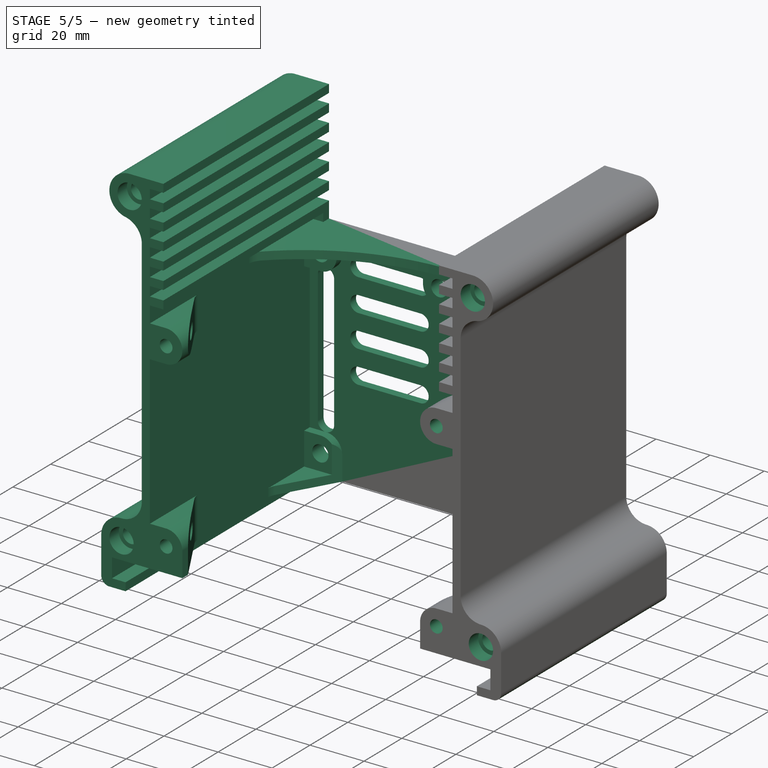
[diagram: stage 5 of 5 — iso view after this stage's code; geometry added in this stage tinted green]
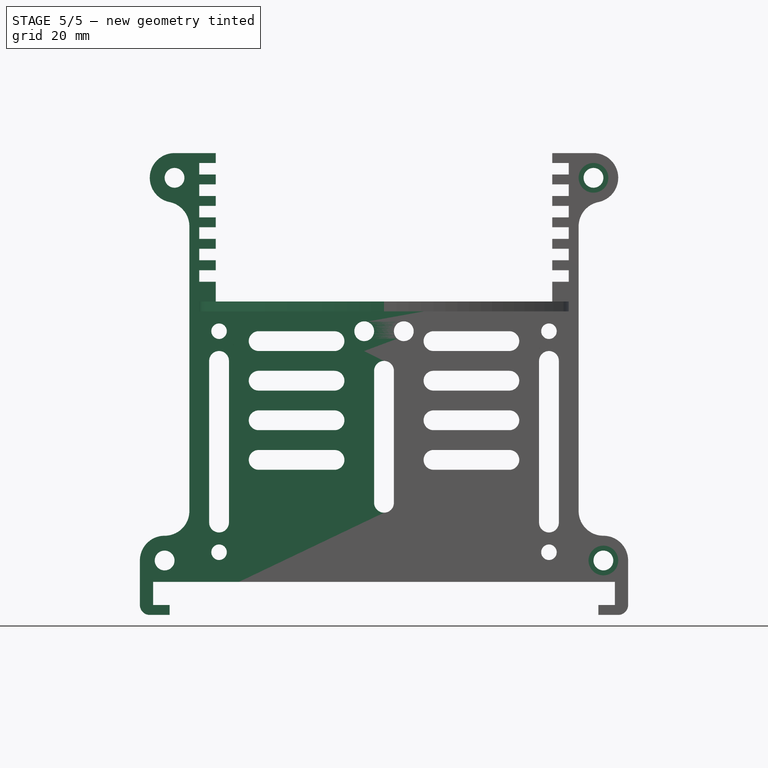
[diagram: stage 5 of 5 — front view after this stage's code; geometry added in this stage tinted green]
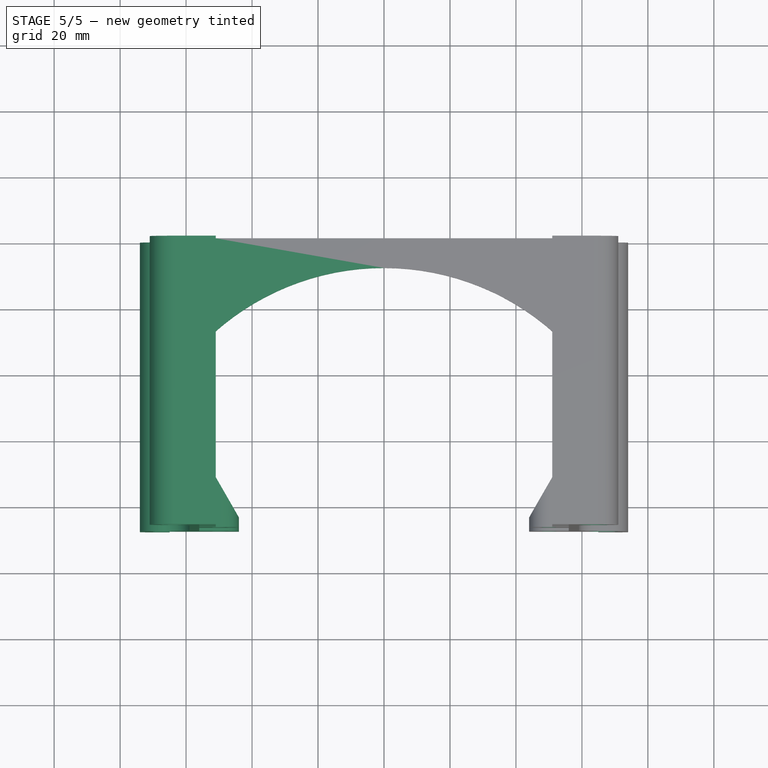
[diagram: stage 5 of 5 — top view after this stage's code; geometry added in this stage tinted green]
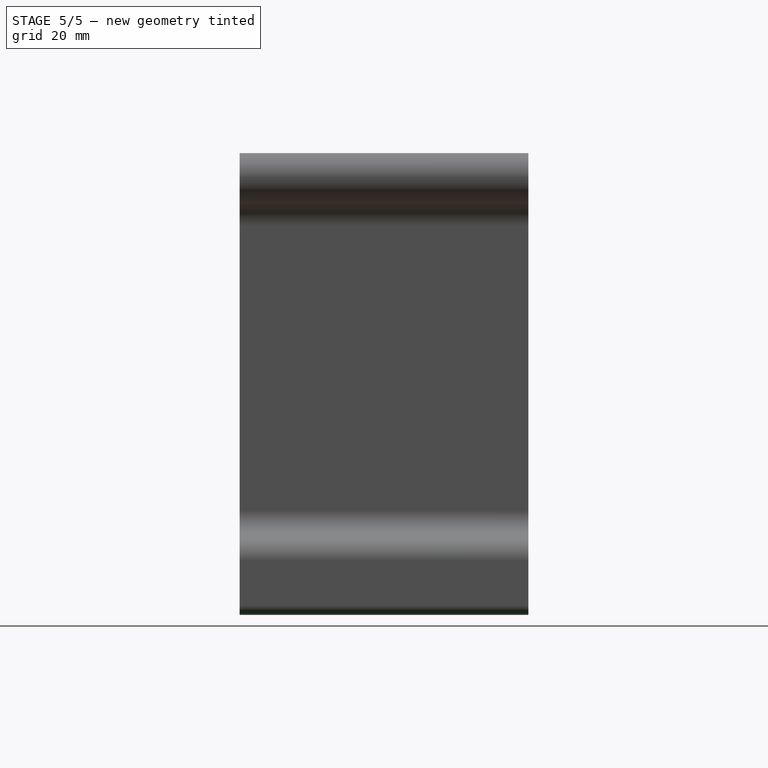
[diagram: stage 5 of 5 — right view after this stage's code; geometry added in this stage tinted green]
FEATURE [Sketcher::SketchObject] Sketch016
  ArcFitTolerance = 1e-06
  AttachmentSupport = -> [Pocket010]
  ExternalGeometry = -> [Pocket010]
  FullyConstrained = true
  MakeInternals = false
  MapMode = 5
  Placement = pos=(0,-87.5,3.76e-14) rot=(1,0,0;1.5708rad)
  sketch-geometry (2):
    g0: Circle CenterX=50 CenterY=16 CenterZ=0 NormalX=0 NormalY=0 NormalZ=1 AngleXU=0 Radius=2.35
    g1: Circle CenterX=50 CenterY=-51 CenterZ=0 NormalX=0 NormalY=0 NormalZ=1 AngleXU=0 Radius=2.35
  constraints (4):
    c: Coincident(g0,g-3)
    c: Coincident(g1,g-4)
    c: Diameter(g0) = 4.7
    c: Diameter(g1) = 4.7
FEATURE [PartDesign::Pocket] Pocket011
  BaseFeature = -> Pocket010
  Direction = (0,1,-2e-16)
  Length = 5
  Length2 = 5
  Placement = pos=(0,0,0) rot=(1,0,0;1.5708rad)
  Profile = -> Sketch016
  ReferenceAxis = -> Sketch016 [N_Axis]
  Refine = true
  Suppressed = false
  Type = 1
FEATURE [PartDesign::Fillet] Fillet004
  Base = -> Pocket011 [Edge263]
  BaseFeature = -> Pocket011
  Placement = pos=(0,0,0) rot=(1,0,0;1.5708rad)
  Radius = 3
  Refine = true
  SupportTransform = false
  Suppressed = false
  UseAllEdges = false
FEATURE [Sketcher::SketchObject] Sketch017
  ArcFitTolerance = 1e-06
  AttachmentSupport = -> [Fillet004]
  ExternalGeometry = -> [Fillet004]
  FullyConstrained = true
  MakeInternals = false
  MapMode = 5
  Placement = pos=(0,-87.5,3.76e-14) rot=(1,0,0;1.5708rad)
  sketch-geometry (2):
    g0: Circle CenterX=63.5 CenterY=62.5 CenterZ=0 NormalX=0 NormalY=0 NormalZ=1 AngleXU=0 Radius=3
    g1: Circle CenterX=66.5 CenterY=-53.5 CenterZ=0 NormalX=0 NormalY=0 NormalZ=1 AngleXU=0 Radius=3
  constraints (4):
    c: Coincident(g0,g-3)
    c: Coincident(g1,g-4)
    c: Diameter(g0) = 6
    c: Diameter(g1) = 6
FEATURE [PartDesign::Pocket] Pocket012
  BaseFeature = -> Fillet004
  Direction = (0,1,-2e-16)
  Length = 5
  Length2 = 5
  Placement = pos=(0,0,0) rot=(1,0,0;1.5708rad)
  Profile = -> Sketch017
  ReferenceAxis = -> Sketch017 [N_Axis]
  Refine = true
  Suppressed = false
  Type = 1
FEATURE [Sketcher::SketchObject] Sketch018
  ArcFitTolerance = 1e-06
  AttachmentSupport = -> [Pocket012]
  ExternalGeometry = -> [Pocket012]
  FullyConstrained = true
  MakeInternals = false
  MapMode = 5
  Placement = pos=(0,-87.5,3.76e-14) rot=(1,0,0;1.5708rad)
  sketch-geometry (2):
    g0: Circle CenterX=66.5 CenterY=-53.5 CenterZ=0 NormalX=0 NormalY=0 NormalZ=1 AngleXU=0 Radius=4.5
    g1: Circle CenterX=63.5 CenterY=62.5 CenterZ=0 NormalX=0 NormalY=0 NormalZ=1 AngleXU=0 Radius=4.5
  constraints (4):
    c: Coincident(g0,g-4)
    c: Coincident(g1,g-3)
    c: Diameter(g1) = 9
    c: Diameter(g0) = 9
FEATURE [PartDesign::Pocket] Pocket013
  BaseFeature = -> Pocket012
  Direction = (0,1,-2e-16)
  Length = 5
  Length2 = 5
  Placement = pos=(0,0,0) rot=(1,0,0;1.5708rad)
  Profile = -> Sketch018
  ReferenceAxis = -> Sketch018 [N_Axis]
  Refine = true
  Suppressed = false
  Type = 0
FEATURE [Sketcher::SketchObject] Sketch019
  ArcFitTolerance = 1e-06
  AttachmentSupport = -> [Pocket013]
  ExternalGeometry = -> [Pocket013]
  FullyConstrained = true
  MakeInternals = false
  MapMode = 5
  Placement = pos=(0,-3e-16,0) rot=(-1,0,0;1.5708rad)
  sketch-geometry (2):
    g0: Circle CenterX=66.5 CenterY=53.5 CenterZ=0 NormalX=0 NormalY=0 NormalZ=1 AngleXU=0 Radius=4.5
    g1: Circle CenterX=63.5 CenterY=-62.5 CenterZ=0 NormalX=0 NormalY=0 NormalZ=1 AngleXU=0 Radius=4.5
  constraints (4):
    c: Coincident(g0,g-3)
    c: Coincident(g1,g-4)
    c: Diameter(g0) = 9
    c: Diameter(g1) = 9
FEATURE [PartDesign::Pocket] Pocket014
  BaseFeature = -> Pocket013
  Direction = (0,-1,-2e-16)
  Length = 5
  Length2 = 5
  Placement = pos=(0,0,0) rot=(1,0,0;1.5708rad)
  Profile = -> Sketch019
  ReferenceAxis = -> Sketch019 [N_Axis]
  Refine = true
  Suppressed = false
  Type = 0
FEATURE [PartDesign::Mirrored] Mirrored
  BaseFeature = -> Pocket014
  MirrorPlane = -> YZ_Plane001
  Placement = pos=(0,0,0) rot=(1,0,0;1.5708rad)
  Refine = true
  Suppressed = false
  TransformMode = 1
FEATURE [PartDesign::Body] Body  label="Stack_Module001"
  AllowCompound = false
  Group = -> [Sketch,Pad,Sketch001,Pocket,Sketch002,Pocket001,Sketch003,Pocket002,Pocket003,Sketch004,Pocket004,LinearPattern,Sketch005,Pad001,Sketch006,Pad002,Fillet,Sketch007,Pad003,Sketch008,Pad004,Sketch009,Pocket005,Sketch010,Pocket006,Fillet001,Fillet002,Sketch011,Pad005,Fillet003,Sketch012,Pocket007,Sketch013,Pocket008,Sketch014,Pocket009,LinearPattern001,Sketch015,Pocket010,Sketch016,Pocket011,+8 more]
  Origin = -> Origin001
  Tip = -> Mirrored
FEATURE [PartDesign::CoordinateSystem] stack_att_up
  AttacherType = Attacher::AttachEngine3D
  AttachmentSupport = -> [Mirrored]
  MapMode = 11
  Placement = pos=(-63.5,-87.5,62.5) rot=(0.57735,0.57735,0.57735;4.18879rad)
FEATURE [PartDesign::CoordinateSystem] stack_att_low
  AttacherType = Attacher::AttachEngine3D
  AttachmentSupport = -> [Mirrored]
  MapMode = 11
  Placement = pos=(-63.5,1.41e-14,62.5) rot=(0.57735,0.57735,-0.57735;2.0944rad)
FEATURE [PartDesign::CoordinateSystem] spacer_att_1
  AttacherType = Attacher::AttachEngine3D
  AttachmentSupport = -> [Mirrored]
  MapMode = 11
  Placement = pos=(66.5,-82.5,-53.5) rot=(0.57735,-0.57735,0.57735;2.0944rad)
FEATURE [PartDesign::CoordinateSystem] spacer_att_2
  AttacherType = Attacher::AttachEngine3D
  AttachmentSupport = -> [Mirrored]
  MapMode = 11
  Placement = pos=(63.5,-82.5,62.5) rot=(0.57735,-0.57735,0.57735;2.0944rad)
FEATURE [PartDesign::CoordinateSystem] spacer_att_3
  AttacherType = Attacher::AttachEngine3D
  AttachmentSupport = -> [Mirrored]
  MapMode = 11
  Placement = pos=(-66.5,-82.5,-53.5) rot=(0.57735,0.57735,0.57735;4.18879rad)
FEATURE [PartDesign::CoordinateSystem] spacer_att_4
  AttacherType = Attacher::AttachEngine3D
  AttachmentSupport = -> [Mirrored]
  MapMode = 11
  Placement = pos=(-63.5,-82.5,62.5) rot=(0.57735,0.57735,0.57735;4.18879rad)
FEATURE [PartDesign::CoordinateSystem] screen_ref  label="screen_reference"
  AttacherType = Attacher::AttachEngine3D
  AttachmentOffset = pos=(4,-50,0) rot=(0,0,1;0rad)
  AttachmentSupport = -> [Mirrored]
  MapMode = 45
  Placement = pos=(-50,-3,-19.9856) rot=(0.57735,0.57735,0.57735;4.18879rad)
FEATURE [App::Part] Part  label="Stack_Module"
  Group = -> [Body,stack_att_up,stack_att_low,spacer_att_1,spacer_att_2,spacer_att_3,spacer_att_4,screen_ref]
  Origin = -> Origin
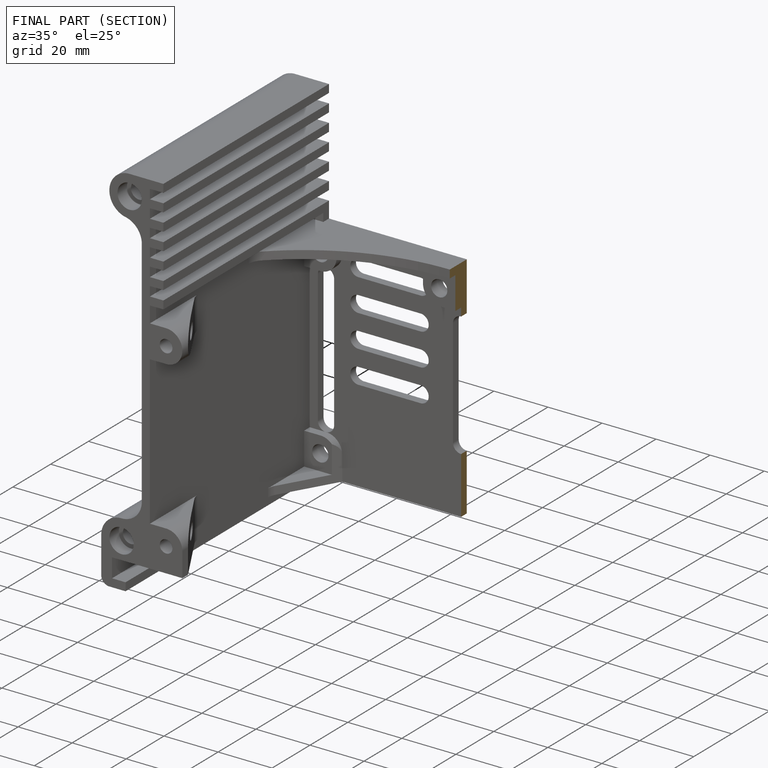
[diagram: finished part — half-section view (interior)]
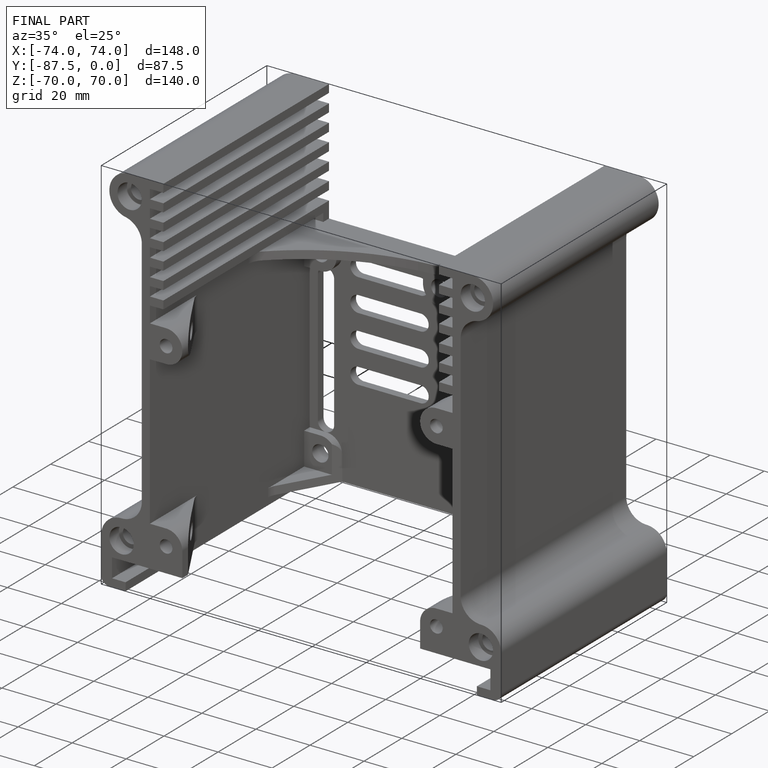
[diagram: finished part — iso view with bounding-box wireframe]
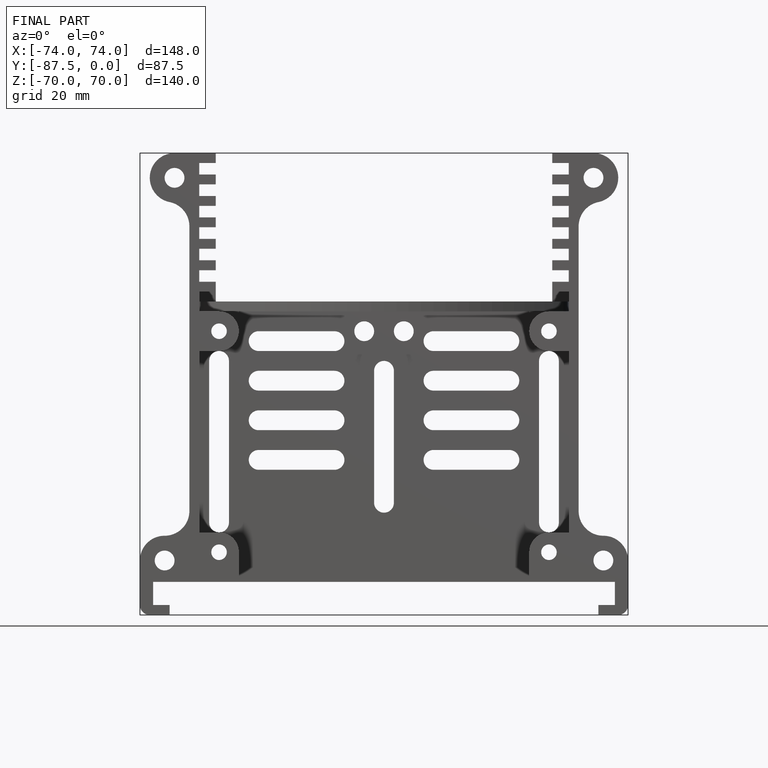
[diagram: finished part — front view with bounding-box wireframe]
